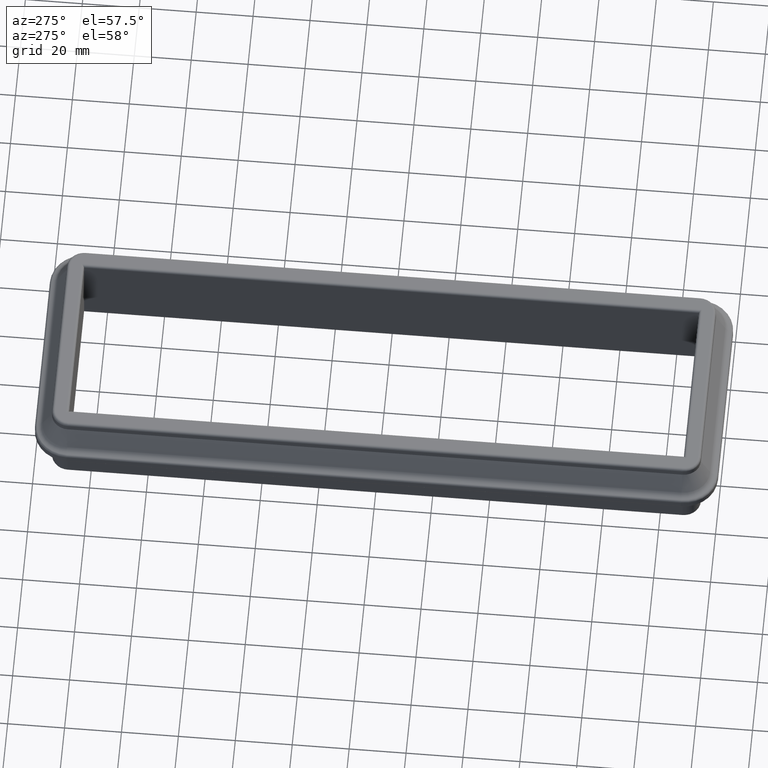
[diagram: clean part render]
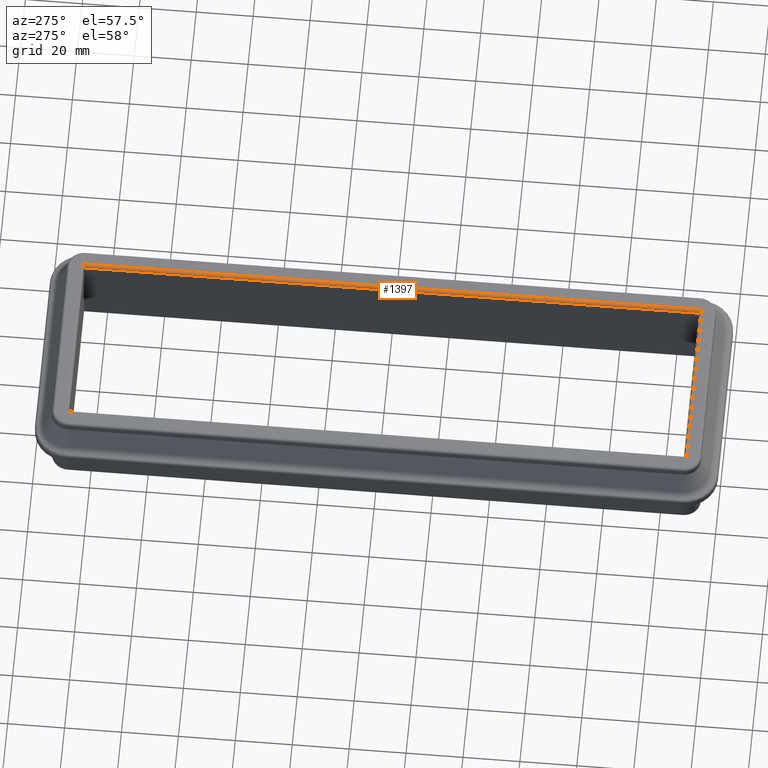
[diagram: same view with one face highlighted and labeled with its STEP entity id]
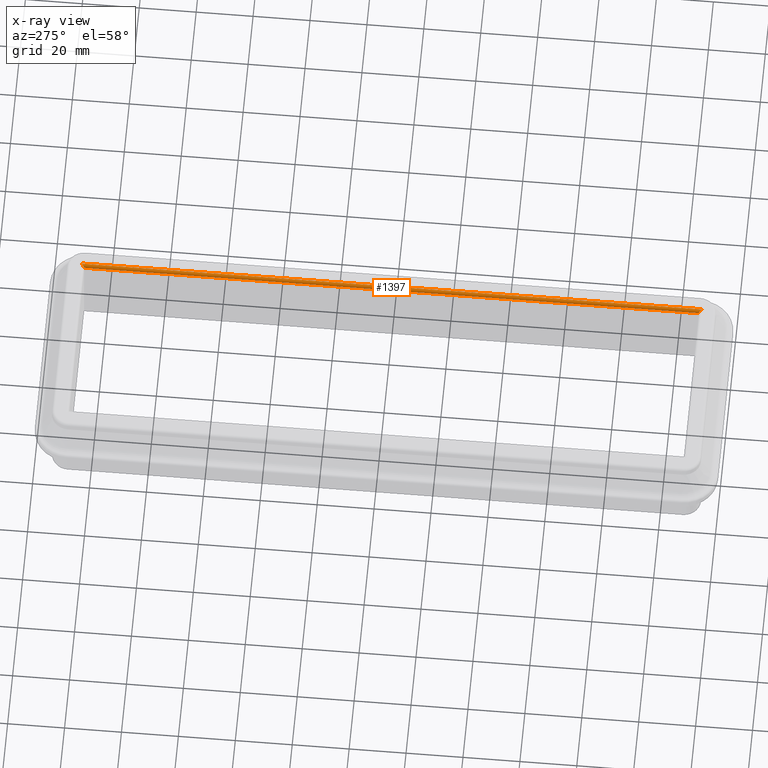
[diagram: x-ray of the same camera — body ghosted, the highlighted face saturated]
A machine part, auxiliary view. The second image highlights one B-rep face of the part: STEP entity #1397.
The next image is the same camera in x-ray: the body ghosted, the highlighted face saturated — about 0% of this face is hidden behind the body in this view.
In plain terms, the highlighted cylindrical surface (edge-blend (fillet) strip) has radius 1 mm, axis along (0, -1, 0).
Its self-contained STEP definition (entity closure, byte-faithful):
#17=ELLIPSE('',#1595,1.41421356237306,1.);
#18=ELLIPSE('',#1597,1.41421356237305,1.);
#140=FACE_OUTER_BOUND('',#237,.T.);
#237=EDGE_LOOP('',(#1154,#1155,#1156,#1157));
#336=LINE('',#2445,#436);
#340=LINE('',#2459,#440);
#436=VECTOR('',#2000,10.);
#440=VECTOR('',#2016,10.);
#652=VERTEX_POINT('',#2442);
#653=VERTEX_POINT('',#2444);
#656=VERTEX_POINT('',#2454);
#657=VERTEX_POINT('',#2458);
#825=EDGE_CURVE('',#653,#652,#336,.T.);
#831=EDGE_CURVE('',#656,#652,#17,.T.);
#832=EDGE_CURVE('',#656,#657,#340,.T.);
#833=EDGE_CURVE('',#657,#653,#18,.T.);
#1154=ORIENTED_EDGE('',*,*,#825,.T.);
#1155=ORIENTED_EDGE('',*,*,#831,.F.);
#1156=ORIENTED_EDGE('',*,*,#832,.T.);
#1157=ORIENTED_EDGE('',*,*,#833,.T.);
#1319=CYLINDRICAL_SURFACE('',#1596,1.);
#1397=ADVANCED_FACE('',(#140),#1319,.T.);
#1595=AXIS2_PLACEMENT_3D('',#2456,#2012,#2013);
#1596=AXIS2_PLACEMENT_3D('',#2457,#2014,#2015);
#1597=AXIS2_PLACEMENT_3D('',#2460,#2017,#2018);
#2000=DIRECTION('',(-1.85037170770859E-16,1.,0.));
#2012=DIRECTION('center_axis',(-0.707106781186566,0.707106781186529,3.14018491736763E-15));
#2013=DIRECTION('ref_axis',(-0.707106781186529,-0.707106781186566,-3.1401849173678E-15));
#2014=DIRECTION('center_axis',(1.85037170770859E-16,-1.,0.));
#2015=DIRECTION('ref_axis',(-0.707106781186549,0.,0.707106781186546));
#2016=DIRECTION('',(1.85037170770859E-16,-1.,0.));
#2017=DIRECTION('center_axis',(0.707106781186527,0.707106781186568,0.));
#2018=DIRECTION('ref_axis',(-0.707106781186568,0.707106781186527,0.));
#2442=CARTESIAN_POINT('',(30.9999999999999,109.,15.));
#2444=CARTESIAN_POINT('',(31.,-109.,15.));
#2445=CARTESIAN_POINT('',(30.9999999999999,108.,15.));
#2454=CARTESIAN_POINT('',(30.,108.,14.));
#2456=CARTESIAN_POINT('Origin',(30.9999999999999,109.,14.));
#2457=CARTESIAN_POINT('Origin',(30.9999999999999,108.,14.));
#2458=CARTESIAN_POINT('',(30.,-108.,14.));
#2459=CARTESIAN_POINT('',(29.9999999999999,108.,14.));
#2460=CARTESIAN_POINT('Origin',(31.,-109.,14.));